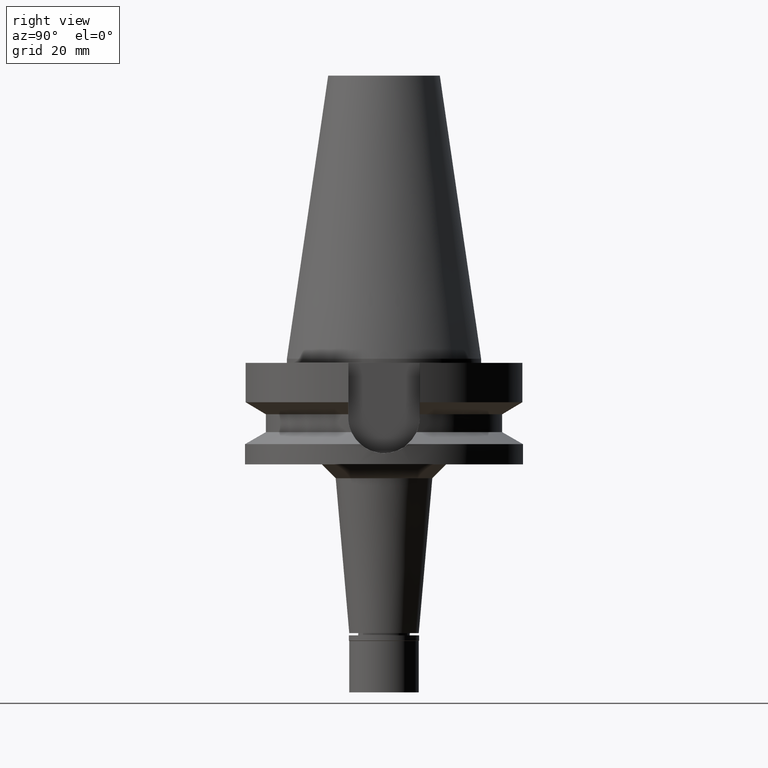
[diagram: clean part render]
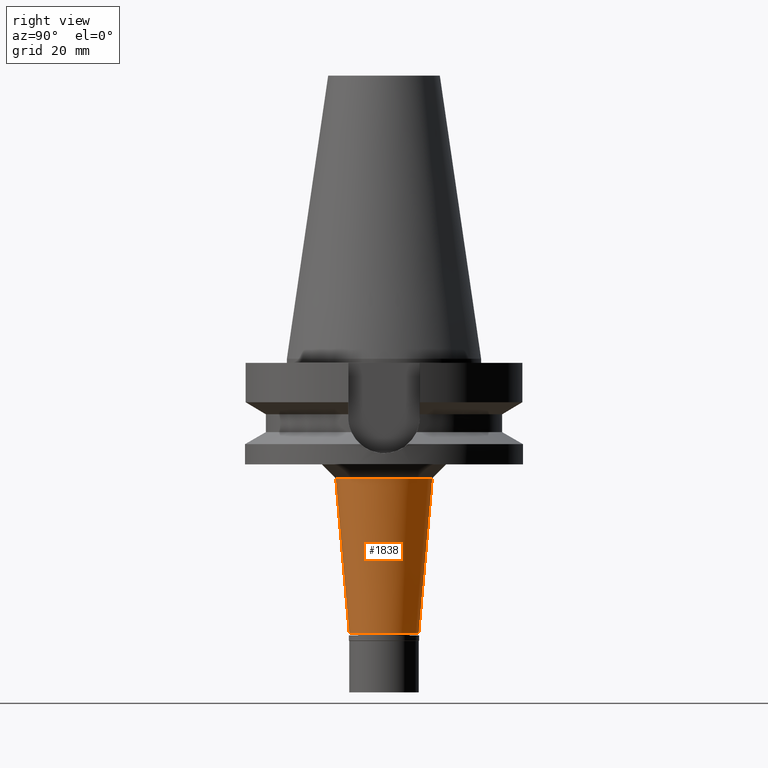
[diagram: same view with one face highlighted and labeled with its STEP entity id]
A machine part, right view. The second image highlights one B-rep face of the part: STEP entity #1838.
In plain terms, the highlighted conical surface has half-angle 5 deg.
Its self-contained STEP definition (entity closure, byte-faithful):
#56 = CIRCLE ( 'NONE', #1435, 17.37311855839999808 ) ;
#71 = LINE ( 'NONE', #1372, #2317 ) ;
#114 = EDGE_CURVE ( 'NONE', #2970, #1077, #1336, .T. ) ;
#176 = LINE ( 'NONE', #2679, #3091 ) ;
#179 = CARTESIAN_POINT ( 'NONE',  ( 0.0000000000000000000, -17.37311855839000074, -43.00000000000000000 ) ) ;
#355 = VERTEX_POINT ( 'NONE', #2671 ) ;
#469 = CONICAL_SURFACE ( 'NONE', #1299, 14.93655927920000082, 0.08726646259969973729 ) ;
#475 = FACE_OUTER_BOUND ( 'NONE', #3071, .T. ) ;
#492 = DIRECTION ( 'NONE',  ( 0.0000000000000000000, 0.0000000000000000000, 1.000000000000000000 ) ) ;
#608 = AXIS2_PLACEMENT_3D ( 'NONE', #1946, #2202, #2714 ) ;
#611 = VERTEX_POINT ( 'NONE', #179 ) ;
#655 = DIRECTION ( 'NONE',  ( 0.0000000000000000000, -1.000000000000000000, 0.0000000000000000000 ) ) ;
#803 = ORIENTED_EDGE ( 'NONE', *, *, #2926, .T. ) ;
#1075 = DIRECTION ( 'NONE',  ( 0.0000000000000000000, -0.08715574274761432594, -0.9961946980917494310 ) ) ;
#1077 = VERTEX_POINT ( 'NONE', #2032 ) ;
#1273 = EDGE_CURVE ( 'NONE', #611, #355, #56, .T. ) ;
#1299 = AXIS2_PLACEMENT_3D ( 'NONE', #1703, #492, #1474 ) ;
#1336 = CIRCLE ( 'NONE', #608, 12.50000000000000000 ) ;
#1372 = CARTESIAN_POINT ( 'NONE',  ( 0.0000000000000000000, 17.37311855839000074, -43.00000000000000000 ) ) ;
#1435 = AXIS2_PLACEMENT_3D ( 'NONE', #2869, #1895, #655 ) ;
#1474 = DIRECTION ( 'NONE',  ( 0.0000000000000000000, 1.000000000000000000, 0.0000000000000000000 ) ) ;
#1670 = CARTESIAN_POINT ( 'NONE',  ( 0.0000000000000000000, -12.50000000000000000, -98.70000000000000284 ) ) ;
#1703 = CARTESIAN_POINT ( 'NONE',  ( 0.0000000000000000000, 0.0000000000000000000, -70.84999999999999432 ) ) ;
#1838 = ADVANCED_FACE ( 'NONE', ( #475 ), #469, .T. ) ;
#1864 = DIRECTION ( 'NONE',  ( 0.0000000000000000000, 0.08715574274761432594, -0.9961946980917494310 ) ) ;
#1895 = DIRECTION ( 'NONE',  ( 0.0000000000000000000, 0.0000000000000000000, 1.000000000000000000 ) ) ;
#1946 = CARTESIAN_POINT ( 'NONE',  ( 0.0000000000000000000, 0.0000000000000000000, -98.70000000000000284 ) ) ;
#2032 = CARTESIAN_POINT ( 'NONE',  ( 0.0000000000000000000, 12.50000000000000000, -98.70000000000000284 ) ) ;
#2055 = ORIENTED_EDGE ( 'NONE', *, *, #1273, .F. ) ;
#2202 = DIRECTION ( 'NONE',  ( 0.0000000000000000000, 0.0000000000000000000, 1.000000000000000000 ) ) ;
#2317 = VECTOR ( 'NONE', #1075, 1000.000000000000114 ) ;
#2671 = CARTESIAN_POINT ( 'NONE',  ( 0.0000000000000000000, 17.37311855839000074, -43.00000000000000000 ) ) ;
#2679 = CARTESIAN_POINT ( 'NONE',  ( 0.0000000000000000000, -17.37311855839000074, -43.00000000000000000 ) ) ;
#2710 = ORIENTED_EDGE ( 'NONE', *, *, #2816, .F. ) ;
#2714 = DIRECTION ( 'NONE',  ( 0.0000000000000000000, -1.000000000000000000, 0.0000000000000000000 ) ) ;
#2816 = EDGE_CURVE ( 'NONE', #355, #1077, #71, .T. ) ;
#2869 = CARTESIAN_POINT ( 'NONE',  ( 0.0000000000000000000, 0.0000000000000000000, -43.00000000000000000 ) ) ;
#2926 = EDGE_CURVE ( 'NONE', #611, #2970, #176, .T. ) ;
#2970 = VERTEX_POINT ( 'NONE', #1670 ) ;
#3066 = ORIENTED_EDGE ( 'NONE', *, *, #114, .T. ) ;
#3071 = EDGE_LOOP ( 'NONE', ( #2055, #803, #3066, #2710 ) ) ;
#3091 = VECTOR ( 'NONE', #1864, 1000.000000000000114 ) ;